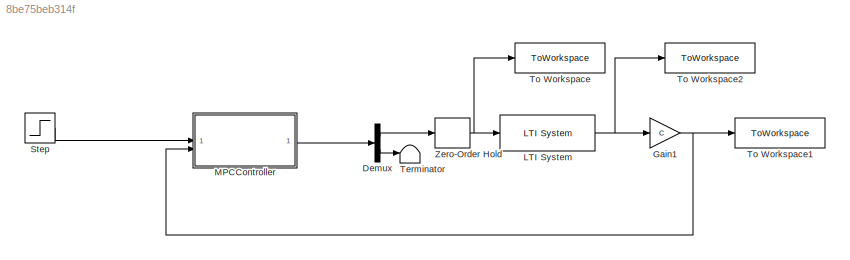
MODEL slx_8be75beb314f
KIND model
CONFIG AbsTol = auto
CONFIG EnableMultiTasking = on
CONFIG FixedStep = auto
CONFIG MaxStep = 0.0001*Ts
CONFIG MinStep = 0.00001*Ts
CONFIG RelTol = 1e-3
CONFIG SampleTimeConstraint = Unconstrained
CONFIG SolverName = ode45
CONFIG StartTime = 0.0
CONFIG StopTime = t_sim
BLOCK [Demux] Demux
  Outputs = 2
BLOCK [Gain] Gain1
  Gain = C
  Multiplication = Matrix(K*u)
BLOCK [Reference] LTI System  REF=cstblocks/LTI System
  SourceBlock = cstblocks/LTI System
  SourceType = LTI Block
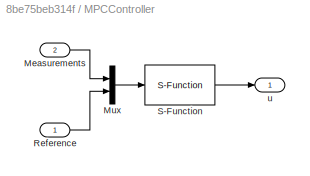
BLOCK [SubSystem] MPCController
BLOCK [Inport] MPCController/Measurements
  Port = 2
BLOCK [Mux] MPCController/Mux
  DisplayOption = bar
  Inputs = 2
BLOCK [Inport] MPCController/Reference
BLOCK [S-Function] MPCController/S-Function
  EnableBusSupport = off
  FunctionName = MPCController
  Parameters = md
  SFcnIsStateOwnerBlock = off
  SFunctionDeploymentMode = off
BLOCK [Outport] MPCController/u
BLOCK [Step] Step
  After = rho
  SampleTime = Ts
  Time = 0
BLOCK [Terminator] Terminator
BLOCK [ToWorkspace] To Workspace
  FixptAsFi = on
  MaxDataPoints = inf
  SampleTime = Ts
  SaveFormat = Timeseries
  VariableName = u
BLOCK [ToWorkspace] To Workspace1
  FixptAsFi = on
  MaxDataPoints = inf
  SampleTime = Ts
  SaveFormat = Timeseries
  VariableName = y
BLOCK [ToWorkspace] To Workspace2
  FixptAsFi = on
  MaxDataPoints = inf
  SampleTime = Ts
  SaveFormat = Timeseries
  VariableName = x
BLOCK [ZeroOrderHold] Zero-Order Hold
  SampleTime = Ts
LINE Demux:1 -> Zero-Order Hold:1
LINE Demux:2 -> Terminator:1
NET Gain1:1 -> MPCController:2, To Workspace1:1
NET LTI System:1 -> Gain1:1, To Workspace2:1
LINE MPCController/Measurements:1 -> MPCController/Mux:1
LINE MPCController/Mux:1 -> MPCController/S-Function:1
LINE MPCController/Reference:1 -> MPCController/Mux:2
LINE MPCController/S-Function:1 -> MPCController/u:1
LINE MPCController:1 -> Demux:1
LINE Step:1 -> MPCController:1
NET Zero-Order Hold:1 -> LTI System:1, To Workspace:1
note: NET lines group one-source signal fan-out (src -> all destinations, sorted); 1:1 wires keep LINE
